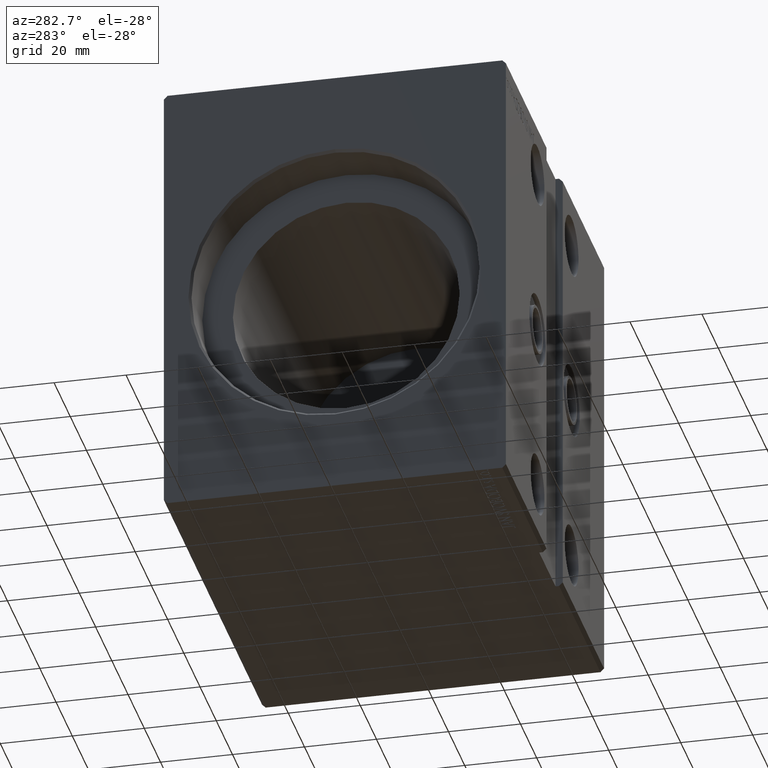
[diagram: clean part render]
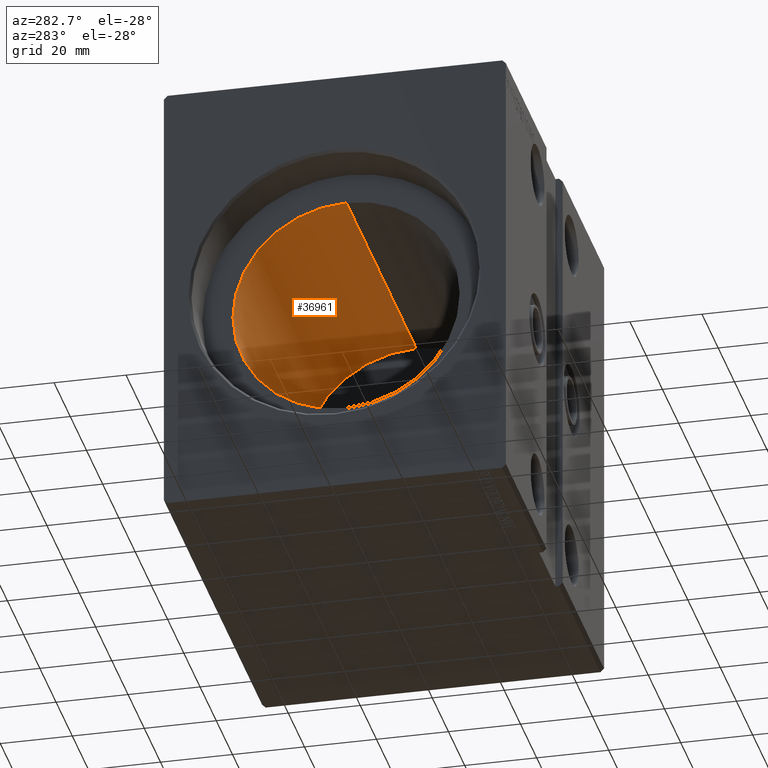
[diagram: same view with one face highlighted and labeled with its STEP entity id]
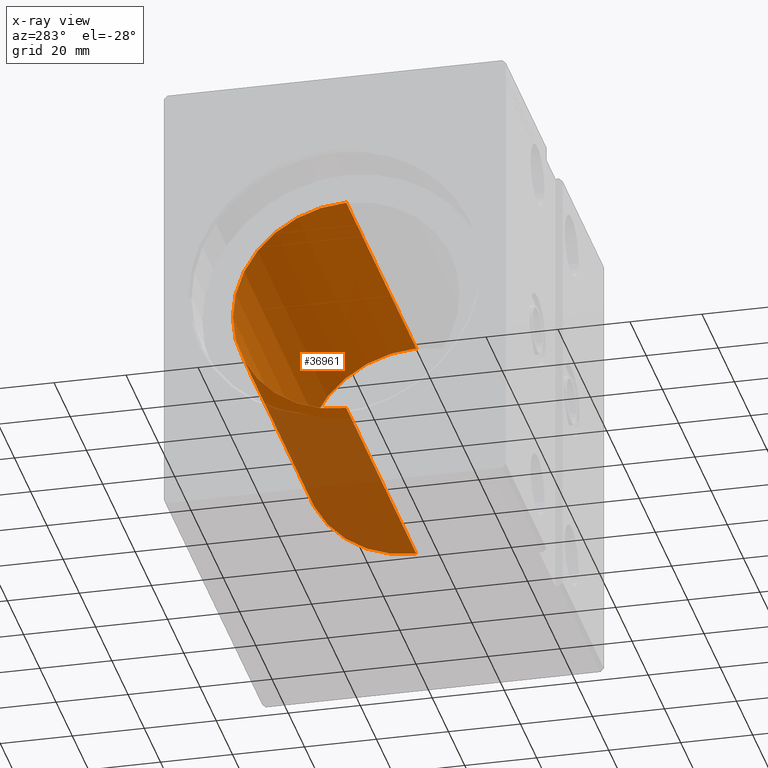
[diagram: x-ray of the same camera — body ghosted, the highlighted face saturated]
A machine part, auxiliary view. The second image highlights one B-rep face of the part: STEP entity #36961.
The next image is the same camera in x-ray: the body ghosted, the highlighted face saturated — about 30% of this face is hidden behind the body in this view.
In plain terms, the highlighted cylindrical surface (partial cylindrical patch) has radius 31.5 mm, axis along (-1, -0, -0).
Its self-contained STEP definition (entity closure, byte-faithful):
#90 = DIRECTION ( 'NONE',  ( 0.000000000000000000, 0.000000000000000000, 1.000000000000000000 ) ) ;
#632 = ORIENTED_EDGE ( 'NONE', *, *, #20423, .F. ) ;
#675 = VERTEX_POINT ( 'NONE', #22804 ) ;
#722 = FACE_OUTER_BOUND ( 'NONE', #32688, .T. ) ;
#1405 = DIRECTION ( 'NONE',  ( -1.000000000000000000, 0.000000000000000000, 0.000000000000000000 ) ) ;
#3802 = DIRECTION ( 'NONE',  ( 0.000000000000000000, 0.000000000000000000, 1.000000000000000000 ) ) ;
#4224 = CARTESIAN_POINT ( 'NONE',  ( 100.2000000000000028, 0.000000000000000000, 0.000000000000000000 ) ) ;
#6356 = EDGE_CURVE ( 'NONE', #29489, #675, #28448, .T. ) ;
#7370 = DIRECTION ( 'NONE',  ( 0.000000000000000000, 0.000000000000000000, 1.000000000000000000 ) ) ;
#8937 = LINE ( 'NONE', #31029, #41511 ) ;
#9704 = ORIENTED_EDGE ( 'NONE', *, *, #6356, .T. ) ;
#9964 = DIRECTION ( 'NONE',  ( -1.000000000000000000, 0.000000000000000000, 0.000000000000000000 ) ) ;
#10094 = CARTESIAN_POINT ( 'NONE',  ( 100.2000000000000028, 3.857637417314162689E-15, -31.50000000000000000 ) ) ;
#10290 = DIRECTION ( 'NONE',  ( -1.000000000000000000, -0.000000000000000000, -0.000000000000000000 ) ) ;
#10743 = VERTEX_POINT ( 'NONE', #33955 ) ;
#11577 = EDGE_CURVE ( 'NONE', #38587, #29489, #8937, .T. ) ;
#13280 = LINE ( 'NONE', #10094, #20609 ) ;
#18031 = ORIENTED_EDGE ( 'NONE', *, *, #11577, .T. ) ;
#20423 = EDGE_CURVE ( 'NONE', #10743, #675, #13280, .T. ) ;
#20609 = VECTOR ( 'NONE', #33444, 1000.000000000000000 ) ;
#21877 = DIRECTION ( 'NONE',  ( -1.000000000000000000, -0.000000000000000000, -0.000000000000000000 ) ) ;
#22804 = CARTESIAN_POINT ( 'NONE',  ( 13.99999999999999822, 3.857637417314162689E-15, -31.50000000000000000 ) ) ;
#23237 = CYLINDRICAL_SURFACE ( 'NONE', #26490, 31.50000000000000000 ) ;
#25978 = EDGE_CURVE ( 'NONE', #38587, #10743, #30629, .T. ) ;
#26490 = AXIS2_PLACEMENT_3D ( 'NONE', #26851, #10290, #90 ) ;
#26851 = CARTESIAN_POINT ( 'NONE',  ( 100.2000000000000028, 0.000000000000000000, 0.000000000000000000 ) ) ;
#27238 = AXIS2_PLACEMENT_3D ( 'NONE', #4224, #9964, #3802 ) ;
#28448 = CIRCLE ( 'NONE', #31845, 31.50000000000000000 ) ;
#29489 = VERTEX_POINT ( 'NONE', #37852 ) ;
#30502 = CARTESIAN_POINT ( 'NONE',  ( 13.99999999999999822, 0.000000000000000000, 0.000000000000000000 ) ) ;
#30629 = CIRCLE ( 'NONE', #27238, 31.50000000000000000 ) ;
#31029 = CARTESIAN_POINT ( 'NONE',  ( 100.2000000000000028, 0.000000000000000000, 31.50000000000000000 ) ) ;
#31845 = AXIS2_PLACEMENT_3D ( 'NONE', #30502, #1405, #7370 ) ;
#32688 = EDGE_LOOP ( 'NONE', ( #632, #40426, #18031, #9704 ) ) ;
#33444 = DIRECTION ( 'NONE',  ( -1.000000000000000000, -0.000000000000000000, -0.000000000000000000 ) ) ;
#33955 = CARTESIAN_POINT ( 'NONE',  ( 100.2000000000000028, 3.857637417314162689E-15, -31.50000000000000000 ) ) ;
#36901 = CARTESIAN_POINT ( 'NONE',  ( 100.2000000000000028, 0.000000000000000000, 31.50000000000000000 ) ) ;
#36961 = ADVANCED_FACE ( 'NONE', ( #722 ), #23237, .F. ) ;
#37852 = CARTESIAN_POINT ( 'NONE',  ( 13.99999999999999822, 0.000000000000000000, 31.50000000000000000 ) ) ;
#38587 = VERTEX_POINT ( 'NONE', #36901 ) ;
#40426 = ORIENTED_EDGE ( 'NONE', *, *, #25978, .F. ) ;
#41511 = VECTOR ( 'NONE', #21877, 1000.000000000000000 ) ;